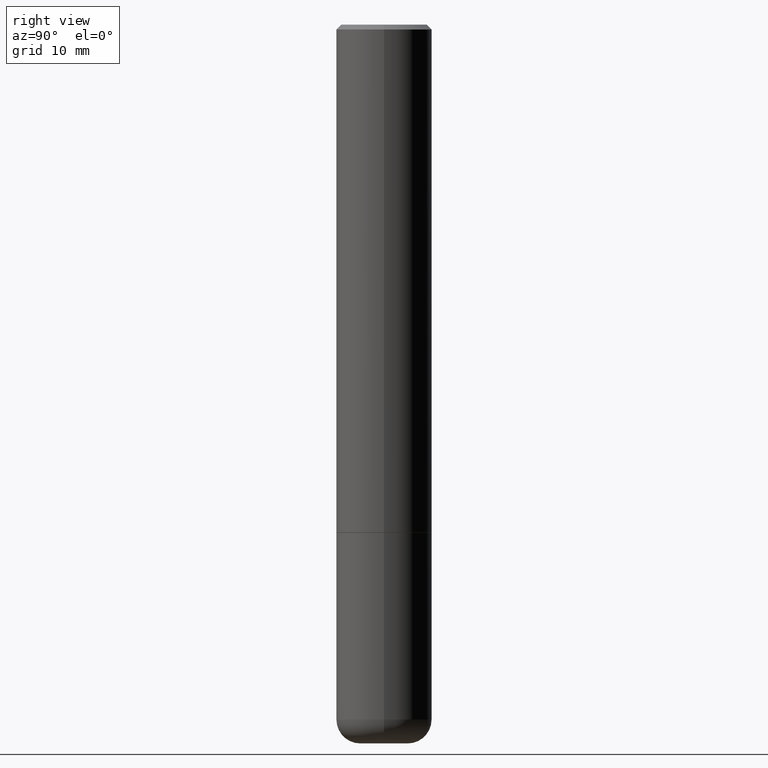
[diagram: clean part render]
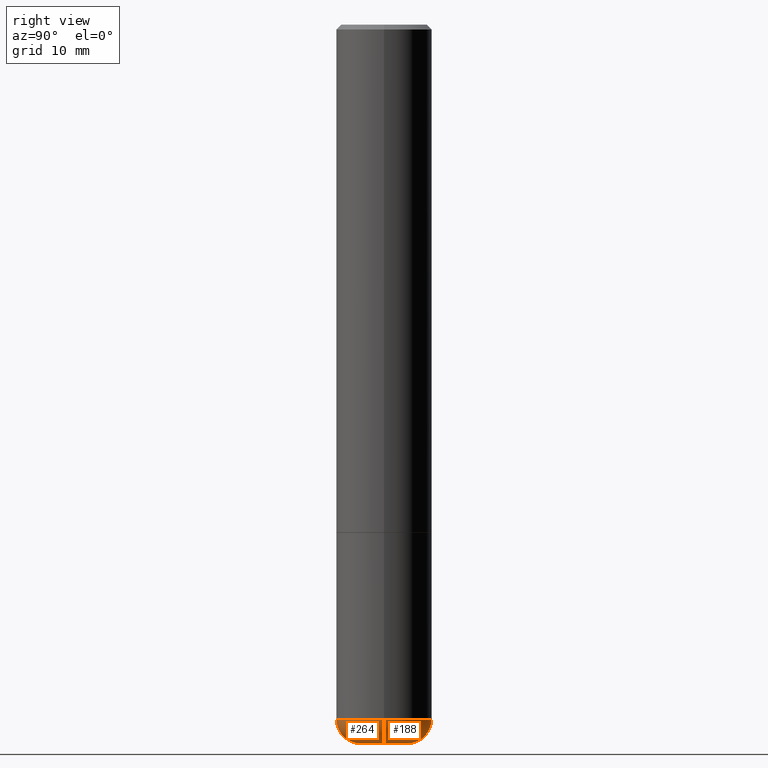
[diagram: same view with one multi-face feature highlighted, each face labeled with its STEP entity id]
A machine part, right view. The highlighted faces form ONE feature: a constant-radius fillet chain: 2 tangent blend faces with common blend radius 2.4994 mm. The faces share edges in the B-rep.
Their STEP definitions:
[1] entity #264 (Torus):
#4 = CIRCLE ( 'NONE', #61, 0.1968500000000000250 ) ;
#5 = CARTESIAN_POINT ( 'NONE',  ( 0.09845000000000002360, -1.099711877295425267E-14, -2.952799999999999869 ) ) ;
#22 = DIRECTION ( 'NONE',  ( 1.000000000000000000, -6.982962677686264344E-15, 4.883557194083112340E-29 ) ) ;
#27 = EDGE_CURVE ( 'NONE', #156, #123, #45, .T. ) ;
#30 = EDGE_LOOP ( 'NONE', ( #187, #280, #102, #152 ) ) ;
#33 = DIRECTION ( 'NONE',  ( -2.445468806185136597E-29, 3.491481338843145583E-15, 1.000000000000000000 ) ) ;
#34 = CIRCLE ( 'NONE', #358, 0.09845000000000002360 ) ;
#36 = CARTESIAN_POINT ( 'NONE',  ( 0.09845000000000000973, -1.065355700921208656E-14, -2.854399999999999604 ) ) ;
#45 = CIRCLE ( 'NONE', #296, 0.09840000000000009850 ) ;
#48 = EDGE_CURVE ( 'NONE', #215, #123, #4, .T. ) ;
#61 = AXIS2_PLACEMENT_3D ( 'NONE', #98, #33, #350 ) ;
#83 = CARTESIAN_POINT ( 'NONE',  ( 6.980346160374851918E-29, -9.966084333593872426E-15, -2.854399999999999604 ) ) ;
#98 = CARTESIAN_POINT ( 'NONE',  ( 6.980346160374851918E-29, -9.966084333593872426E-15, -2.854399999999999604 ) ) ;
#102 = ORIENTED_EDGE ( 'NONE', *, *, #27, .T. ) ;
#106 = CARTESIAN_POINT ( 'NONE',  ( 0.1968500000000000527, -1.134068053669641403E-14, -2.854399999999999604 ) ) ;
#107 = TOROIDAL_SURFACE ( 'NONE', #407, 0.09845000000000000973, 0.09840000000000012625 ) ;
#123 = VERTEX_POINT ( 'NONE', #106 ) ;
#127 = DIRECTION ( 'NONE',  ( 1.000000000000000000, -6.982962677686274599E-15, 0.000000000000000000 ) ) ;
#146 = EDGE_CURVE ( 'NONE', #405, #156, #34, .T. ) ;
#152 = ORIENTED_EDGE ( 'NONE', *, *, #48, .F. ) ;
#156 = VERTEX_POINT ( 'NONE', #5 ) ;
#173 = CARTESIAN_POINT ( 'NONE',  ( 7.220980290903470182E-29, -1.030964609733603853E-14, -2.952799999999999869 ) ) ;
#187 = ORIENTED_EDGE ( 'NONE', *, *, #319, .F. ) ;
#201 = DIRECTION ( 'NONE',  ( 1.000000000000000000, -6.982962677686273021E-15, 0.000000000000000000 ) ) ;
#215 = VERTEX_POINT ( 'NONE', #263 ) ;
#247 = CARTESIAN_POINT ( 'NONE',  ( -0.09845000000000000973, -9.266555010238054316E-15, -2.854399999999999604 ) ) ;
#258 = AXIS2_PLACEMENT_3D ( 'NONE', #247, #338, #268 ) ;
#263 = CARTESIAN_POINT ( 'NONE',  ( -0.1968500000000000527, -8.567380958250117005E-15, -2.854399999999999604 ) ) ;
#264 = ADVANCED_FACE ( 'NONE', ( #273 ), #107, .T. ) ;
#268 = DIRECTION ( 'NONE',  ( -1.000000000000000000, 7.105427357601001859E-15, 0.000000000000000000 ) ) ;
#273 = FACE_OUTER_BOUND ( 'NONE', #30, .T. ) ;
#276 = DIRECTION ( 'NONE',  ( -2.445468806185136597E-29, 3.491481338843145583E-15, 1.000000000000000000 ) ) ;
#280 = ORIENTED_EDGE ( 'NONE', *, *, #146, .T. ) ;
#295 = DIRECTION ( 'NONE',  ( -2.445468806185136597E-29, 3.491481338843145583E-15, 1.000000000000000000 ) ) ;
#296 = AXIS2_PLACEMENT_3D ( 'NONE', #36, #414, #127 ) ;
#301 = CIRCLE ( 'NONE', #258, 0.09840000000000009850 ) ;
#319 = EDGE_CURVE ( 'NONE', #405, #215, #301, .T. ) ;
#338 = DIRECTION ( 'NONE',  ( 7.105427357601001859E-15, 1.000000000000000000, -3.491481338843145583E-15 ) ) ;
#350 = DIRECTION ( 'NONE',  ( 1.000000000000000000, -6.982962677686267499E-15, 0.000000000000000000 ) ) ;
#358 = AXIS2_PLACEMENT_3D ( 'NONE', #173, #295, #201 ) ;
#363 = CARTESIAN_POINT ( 'NONE',  ( -0.09845000000000002360, -9.088748866115166345E-15, -2.952799999999999869 ) ) ;
#405 = VERTEX_POINT ( 'NONE', #363 ) ;
#407 = AXIS2_PLACEMENT_3D ( 'NONE', #83, #276, #22 ) ;
#414 = DIRECTION ( 'NONE',  ( -6.982962677686266711E-15, -1.000000000000000000, 3.491481338843145583E-15 ) ) ;
[2] entity #188 (Torus):
#5 = CARTESIAN_POINT ( 'NONE',  ( 0.09845000000000002360, -1.099711877295425267E-14, -2.952799999999999869 ) ) ;
#8 = CARTESIAN_POINT ( 'NONE',  ( 7.220980290903470182E-29, -1.030964609733603853E-14, -2.952799999999999869 ) ) ;
#19 = DIRECTION ( 'NONE',  ( -2.445468806185136597E-29, 3.491481338843145583E-15, 1.000000000000000000 ) ) ;
#27 = EDGE_CURVE ( 'NONE', #156, #123, #45, .T. ) ;
#36 = CARTESIAN_POINT ( 'NONE',  ( 0.09845000000000000973, -1.065355700921208656E-14, -2.854399999999999604 ) ) ;
#45 = CIRCLE ( 'NONE', #296, 0.09840000000000009850 ) ;
#53 = AXIS2_PLACEMENT_3D ( 'NONE', #8, #141, #265 ) ;
#73 = FACE_OUTER_BOUND ( 'NONE', #118, .T. ) ;
#76 = AXIS2_PLACEMENT_3D ( 'NONE', #185, #19, #155 ) ;
#92 = ORIENTED_EDGE ( 'NONE', *, *, #248, .T. ) ;
#106 = CARTESIAN_POINT ( 'NONE',  ( 0.1968500000000000527, -1.134068053669641403E-14, -2.854399999999999604 ) ) ;
#109 = DIRECTION ( 'NONE',  ( 1.000000000000000000, -6.982962677686264344E-15, 4.883557194083112340E-29 ) ) ;
#118 = EDGE_LOOP ( 'NONE', ( #92, #153, #240, #347 ) ) ;
#123 = VERTEX_POINT ( 'NONE', #106 ) ;
#127 = DIRECTION ( 'NONE',  ( 1.000000000000000000, -6.982962677686274599E-15, 0.000000000000000000 ) ) ;
#141 = DIRECTION ( 'NONE',  ( -2.445468806185136597E-29, 3.491481338843145583E-15, 1.000000000000000000 ) ) ;
#153 = ORIENTED_EDGE ( 'NONE', *, *, #319, .T. ) ;
#155 = DIRECTION ( 'NONE',  ( 1.000000000000000000, -6.982962677686267499E-15, 0.000000000000000000 ) ) ;
#156 = VERTEX_POINT ( 'NONE', #5 ) ;
#182 = TOROIDAL_SURFACE ( 'NONE', #246, 0.09845000000000000973, 0.09840000000000012625 ) ;
#185 = CARTESIAN_POINT ( 'NONE',  ( 6.980346160374851918E-29, -9.966084333593872426E-15, -2.854399999999999604 ) ) ;
#188 = ADVANCED_FACE ( 'NONE', ( #73 ), #182, .T. ) ;
#198 = CARTESIAN_POINT ( 'NONE',  ( 6.980346160374851918E-29, -9.966084333593872426E-15, -2.854399999999999604 ) ) ;
#199 = CIRCLE ( 'NONE', #53, 0.09845000000000002360 ) ;
#215 = VERTEX_POINT ( 'NONE', #263 ) ;
#240 = ORIENTED_EDGE ( 'NONE', *, *, #304, .F. ) ;
#246 = AXIS2_PLACEMENT_3D ( 'NONE', #198, #393, #109 ) ;
#247 = CARTESIAN_POINT ( 'NONE',  ( -0.09845000000000000973, -9.266555010238054316E-15, -2.854399999999999604 ) ) ;
#248 = EDGE_CURVE ( 'NONE', #156, #405, #199, .T. ) ;
#258 = AXIS2_PLACEMENT_3D ( 'NONE', #247, #338, #268 ) ;
#263 = CARTESIAN_POINT ( 'NONE',  ( -0.1968500000000000527, -8.567380958250117005E-15, -2.854399999999999604 ) ) ;
#265 = DIRECTION ( 'NONE',  ( 1.000000000000000000, -6.982962677686273021E-15, 0.000000000000000000 ) ) ;
#268 = DIRECTION ( 'NONE',  ( -1.000000000000000000, 7.105427357601001859E-15, 0.000000000000000000 ) ) ;
#296 = AXIS2_PLACEMENT_3D ( 'NONE', #36, #414, #127 ) ;
#301 = CIRCLE ( 'NONE', #258, 0.09840000000000009850 ) ;
#304 = EDGE_CURVE ( 'NONE', #123, #215, #335, .T. ) ;
#319 = EDGE_CURVE ( 'NONE', #405, #215, #301, .T. ) ;
#335 = CIRCLE ( 'NONE', #76, 0.1968500000000000250 ) ;
#338 = DIRECTION ( 'NONE',  ( 7.105427357601001859E-15, 1.000000000000000000, -3.491481338843145583E-15 ) ) ;
#347 = ORIENTED_EDGE ( 'NONE', *, *, #27, .F. ) ;
#363 = CARTESIAN_POINT ( 'NONE',  ( -0.09845000000000002360, -9.088748866115166345E-15, -2.952799999999999869 ) ) ;
#393 = DIRECTION ( 'NONE',  ( -2.445468806185136597E-29, 3.491481338843145583E-15, 1.000000000000000000 ) ) ;
#405 = VERTEX_POINT ( 'NONE', #363 ) ;
#414 = DIRECTION ( 'NONE',  ( -6.982962677686266711E-15, -1.000000000000000000, 3.491481338843145583E-15 ) ) ;